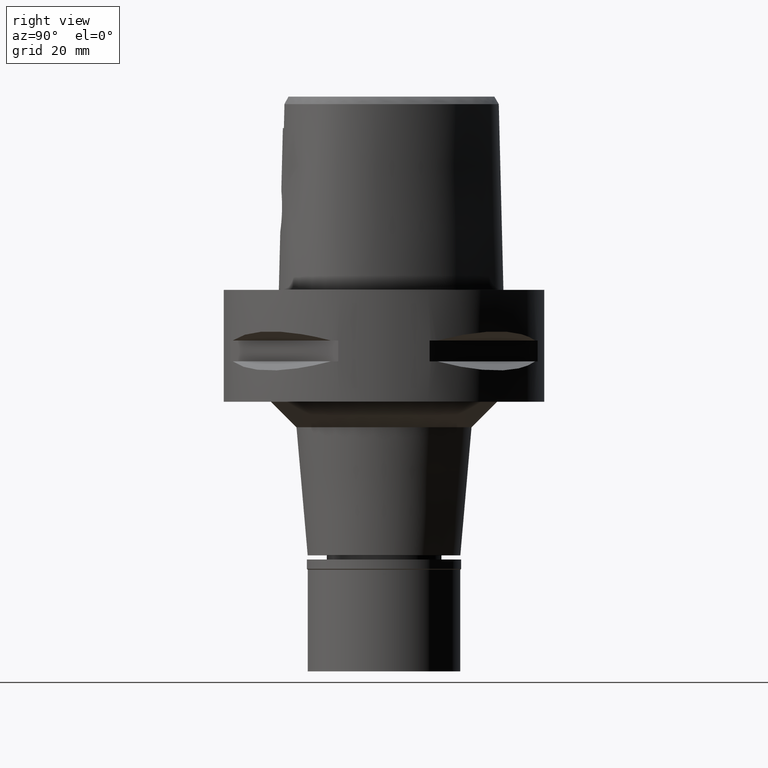
[diagram: clean part render]
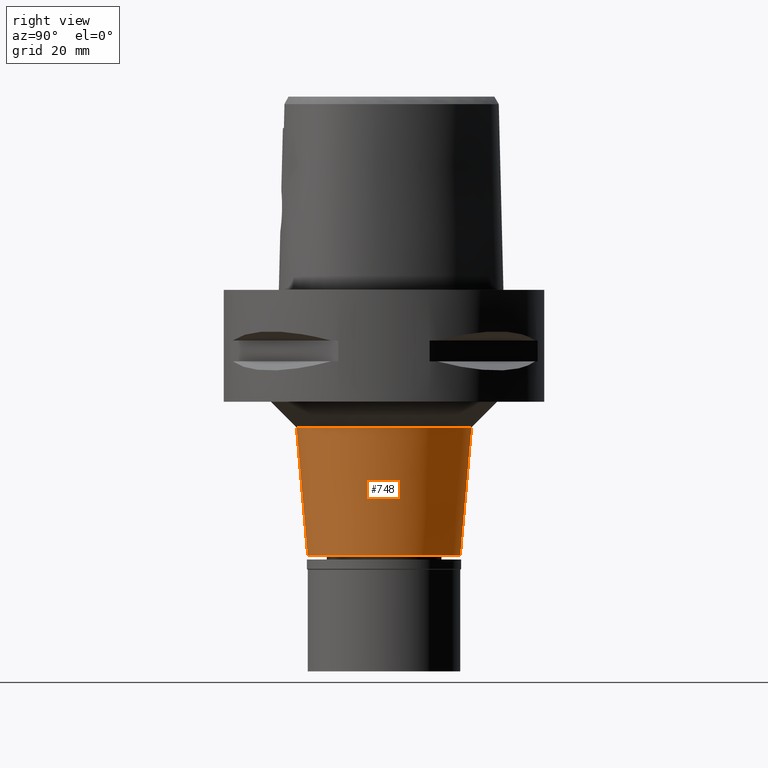
[diagram: same view with one face highlighted and labeled with its STEP entity id]
A machine part, right view. The second image highlights one B-rep face of the part: STEP entity #748.
In plain terms, the highlighted conical surface has half-angle 5 deg.
Its self-contained STEP definition (entity closure, byte-faithful):
#422 = ORIENTED_EDGE ( 'NONE', *, *, #3910, .T. ) ;
#680 = ORIENTED_EDGE ( 'NONE', *, *, #1943, .T. ) ;
#703 = CONICAL_SURFACE ( 'NONE', #3448, 16.10235716042999954, 0.08726646259969973729 ) ;
#748 = ADVANCED_FACE ( 'NONE', ( #4309 ), #703, .T. ) ;
#945 = VERTEX_POINT ( 'NONE', #2903 ) ;
#1037 = CARTESIAN_POINT ( 'NONE',  ( 0.0000000000000000000, 17.20471432085000174, -27.00000000000000000 ) ) ;
#1301 = LINE ( 'NONE', #1037, #2416 ) ;
#1303 = DIRECTION ( 'NONE',  ( 0.0000000000000000000, 1.000000000000000000, 0.0000000000000000000 ) ) ;
#1829 = EDGE_CURVE ( 'NONE', #4697, #2700, #1301, .T. ) ;
#1943 = EDGE_CURVE ( 'NONE', #2378, #945, #4783, .T. ) ;
#2173 = DIRECTION ( 'NONE',  ( 0.0000000000000000000, -1.000000000000000000, 0.0000000000000000000 ) ) ;
#2253 = AXIS2_PLACEMENT_3D ( 'NONE', #3652, #3261, #2173 ) ;
#2281 = DIRECTION ( 'NONE',  ( 0.0000000000000000000, 0.0000000000000000000, 1.000000000000000000 ) ) ;
#2300 = ORIENTED_EDGE ( 'NONE', *, *, #1829, .F. ) ;
#2378 = VERTEX_POINT ( 'NONE', #4557 ) ;
#2416 = VECTOR ( 'NONE', #3967, 1000.000000000000000 ) ;
#2700 = VERTEX_POINT ( 'NONE', #2842 ) ;
#2721 = EDGE_LOOP ( 'NONE', ( #4755, #680, #422, #2300 ) ) ;
#2800 = VECTOR ( 'NONE', #4685, 1000.000000000000000 ) ;
#2842 = CARTESIAN_POINT ( 'NONE',  ( 0.0000000000000000000, 15.00000000000000000, -52.20000000000000284 ) ) ;
#2880 = CIRCLE ( 'NONE', #3038, 17.20471432086000263 ) ;
#2902 = CARTESIAN_POINT ( 'NONE',  ( 0.0000000000000000000, -17.20471432085000174, -27.00000000000000000 ) ) ;
#2903 = CARTESIAN_POINT ( 'NONE',  ( 0.0000000000000000000, -15.00000000000000000, -52.20000000000000284 ) ) ;
#3038 = AXIS2_PLACEMENT_3D ( 'NONE', #4163, #2281, #3791 ) ;
#3199 = CIRCLE ( 'NONE', #2253, 15.00000000000000000 ) ;
#3261 = DIRECTION ( 'NONE',  ( 0.0000000000000000000, 0.0000000000000000000, 1.000000000000000000 ) ) ;
#3270 = EDGE_CURVE ( 'NONE', #2378, #4697, #2880, .T. ) ;
#3387 = CARTESIAN_POINT ( 'NONE',  ( 0.0000000000000000000, 17.20471432085000174, -27.00000000000000000 ) ) ;
#3448 = AXIS2_PLACEMENT_3D ( 'NONE', #4239, #4687, #1303 ) ;
#3652 = CARTESIAN_POINT ( 'NONE',  ( 0.0000000000000000000, 0.0000000000000000000, -52.20000000000000284 ) ) ;
#3791 = DIRECTION ( 'NONE',  ( 0.0000000000000000000, -1.000000000000000000, 0.0000000000000000000 ) ) ;
#3910 = EDGE_CURVE ( 'NONE', #945, #2700, #3199, .T. ) ;
#3967 = DIRECTION ( 'NONE',  ( 0.0000000000000000000, -0.08715574274756596185, -0.9961946980917535388 ) ) ;
#4163 = CARTESIAN_POINT ( 'NONE',  ( 0.0000000000000000000, 0.0000000000000000000, -27.00000000000000000 ) ) ;
#4239 = CARTESIAN_POINT ( 'NONE',  ( 0.0000000000000000000, 0.0000000000000000000, -39.60000000000000142 ) ) ;
#4309 = FACE_OUTER_BOUND ( 'NONE', #2721, .T. ) ;
#4557 = CARTESIAN_POINT ( 'NONE',  ( 0.0000000000000000000, -17.20471432085000174, -27.00000000000000000 ) ) ;
#4685 = DIRECTION ( 'NONE',  ( 0.0000000000000000000, 0.08715574274756596185, -0.9961946980917535388 ) ) ;
#4687 = DIRECTION ( 'NONE',  ( 0.0000000000000000000, 0.0000000000000000000, 1.000000000000000000 ) ) ;
#4697 = VERTEX_POINT ( 'NONE', #3387 ) ;
#4755 = ORIENTED_EDGE ( 'NONE', *, *, #3270, .F. ) ;
#4783 = LINE ( 'NONE', #2902, #2800 ) ;